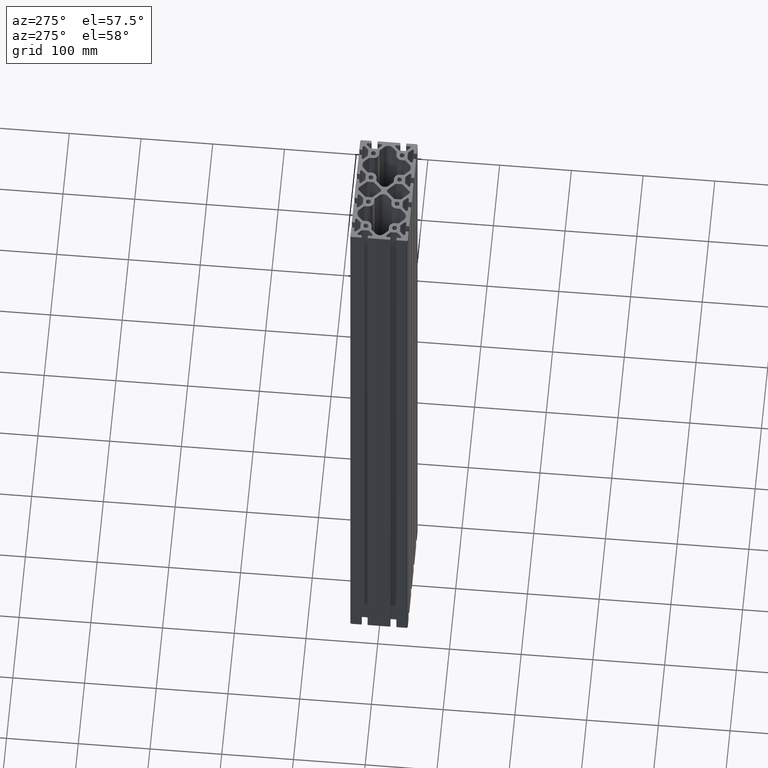
[diagram: clean part render]
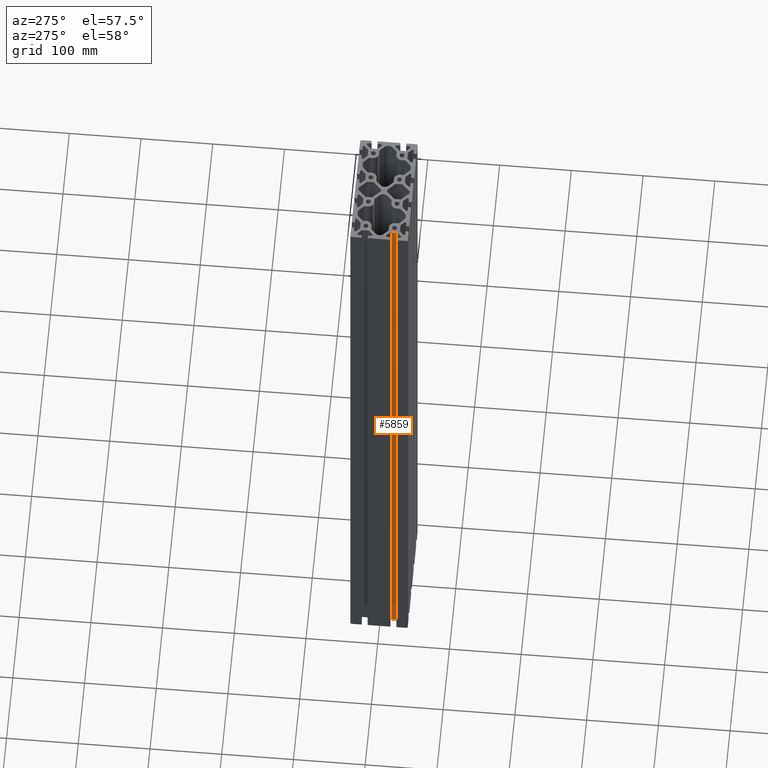
[diagram: same view with one face highlighted and labeled with its STEP entity id]
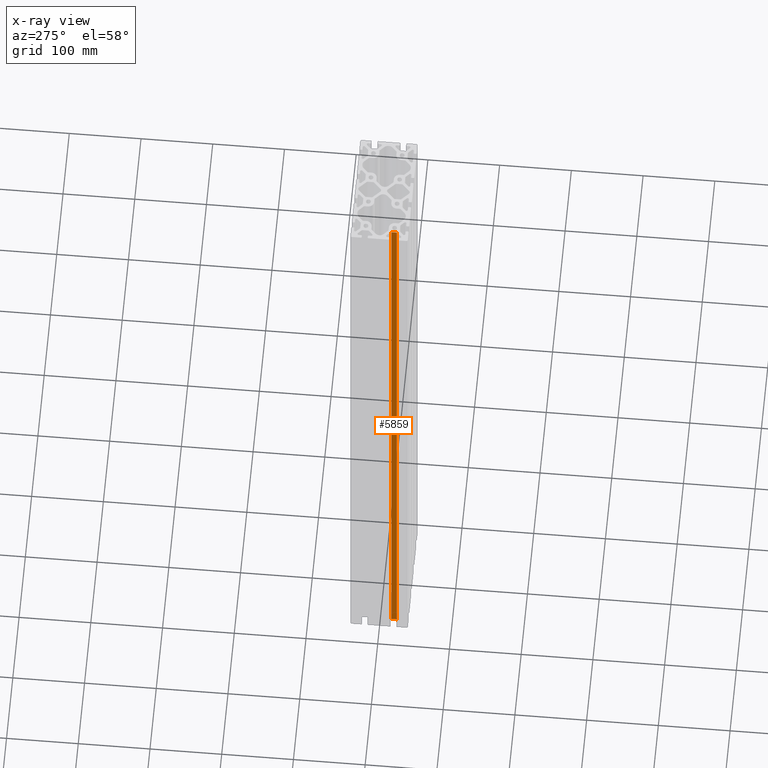
[diagram: x-ray of the same camera — body ghosted, the highlighted face saturated]
A machine part, auxiliary view. The second image highlights one B-rep face of the part: STEP entity #5859.
The next image is the same camera in x-ray: the body ghosted, the highlighted face saturated — about 0% of this face is hidden behind the body in this view.
In plain terms, the highlighted planar face has unit normal (1, 0, 0).
Its self-contained STEP definition (entity closure, byte-faithful):
#118=PLANE('',#6484);
#359=FACE_OUTER_BOUND('',#681,.T.);
#681=EDGE_LOOP('',(#5037,#5038,#5039,#5040));
#945=LINE('',#8846,#1529);
#1126=LINE('',#9553,#1710);
#1323=LINE('',#9987,#1907);
#1325=LINE('',#9990,#1909);
#1529=VECTOR('',#6994,10.);
#1710=VECTOR('',#7551,10.);
#1907=VECTOR('',#8084,10.);
#1909=VECTOR('',#8088,10.);
#2460=VERTEX_POINT('',#8843);
#2461=VERTEX_POINT('',#8845);
#2798=VERTEX_POINT('',#9550);
#2799=VERTEX_POINT('',#9552);
#3081=EDGE_CURVE('',#2460,#2461,#945,.T.);
#3445=EDGE_CURVE('',#2798,#2799,#1126,.T.);
#3691=EDGE_CURVE('',#2461,#2798,#1323,.T.);
#3693=EDGE_CURVE('',#2799,#2460,#1325,.T.);
#5037=ORIENTED_EDGE('',*,*,#3691,.F.);
#5038=ORIENTED_EDGE('',*,*,#3081,.F.);
#5039=ORIENTED_EDGE('',*,*,#3693,.F.);
#5040=ORIENTED_EDGE('',*,*,#3445,.F.);
#5859=ADVANCED_FACE('',(#359),#118,.F.);
#6484=AXIS2_PLACEMENT_3D('',#9989,#8086,#8087);
#6994=DIRECTION('',(0.,1.,0.));
#7551=DIRECTION('',(0.,-1.,0.));
#8084=DIRECTION('',(0.,0.,1.));
#8086=DIRECTION('center_axis',(1.,0.,0.));
#8087=DIRECTION('ref_axis',(0.,1.,0.));
#8088=DIRECTION('',(0.,0.,-1.));
#8843=CARTESIAN_POINT('',(-67.5,-23.8431457505076,0.));
#8845=CARTESIAN_POINT('',(-67.5,-16.1568542494924,0.));
#8846=CARTESIAN_POINT('',(-67.5,-12.3357864376269,0.));
#9550=CARTESIAN_POINT('',(-67.5,-16.1568542494924,1000.));
#9552=CARTESIAN_POINT('',(-67.5,-23.8431457505076,1000.));
#9553=CARTESIAN_POINT('',(-67.5,-12.3357864376269,1000.));
#9987=CARTESIAN_POINT('',(-67.5,-16.1568542494924,0.));
#9989=CARTESIAN_POINT('Origin',(-67.5,-24.6715728752538,0.));
#9990=CARTESIAN_POINT('',(-67.5,-23.8431457505076,0.));